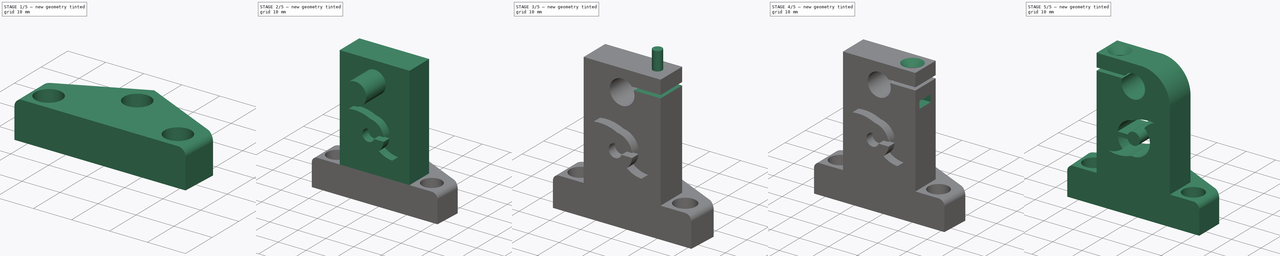
[diagram: build sequence overview — one tinted view per stage of 5, left to right]
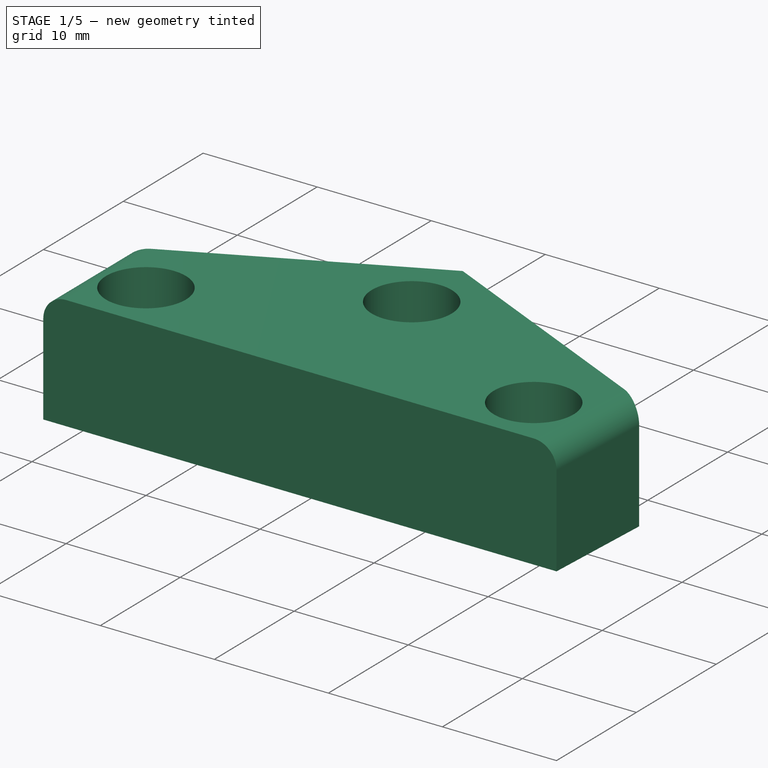
[diagram: stage 1 of 5 — iso view after this stage's code; geometry added in this stage tinted green]
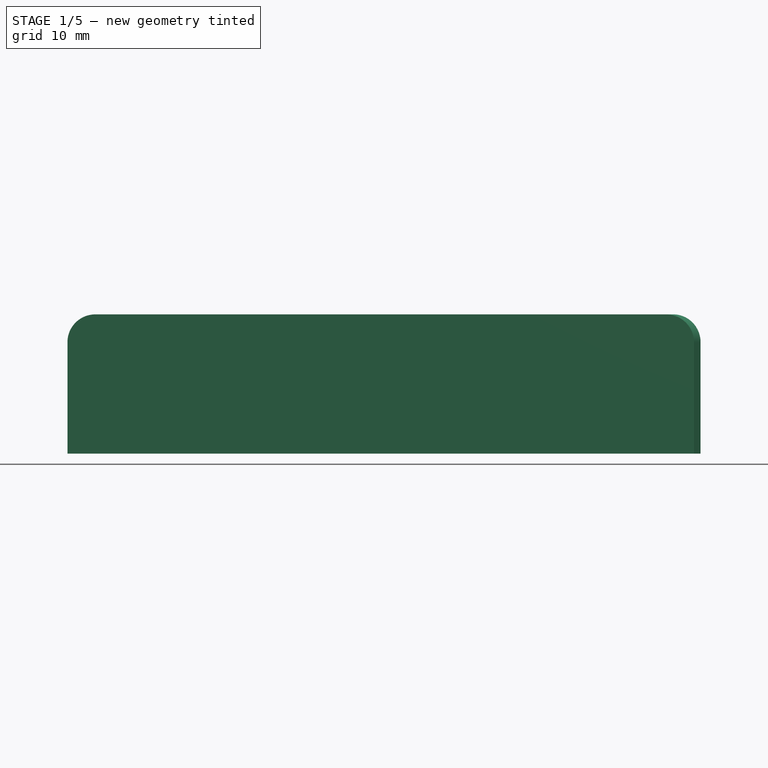
[diagram: stage 1 of 5 — front view after this stage's code; geometry added in this stage tinted green]
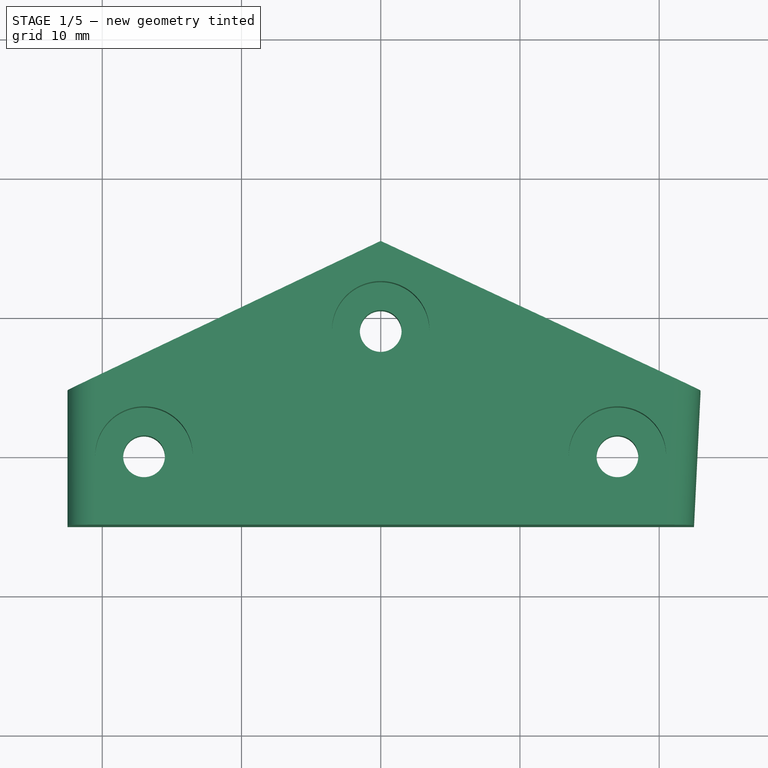
[diagram: stage 1 of 5 — top view after this stage's code; geometry added in this stage tinted green]
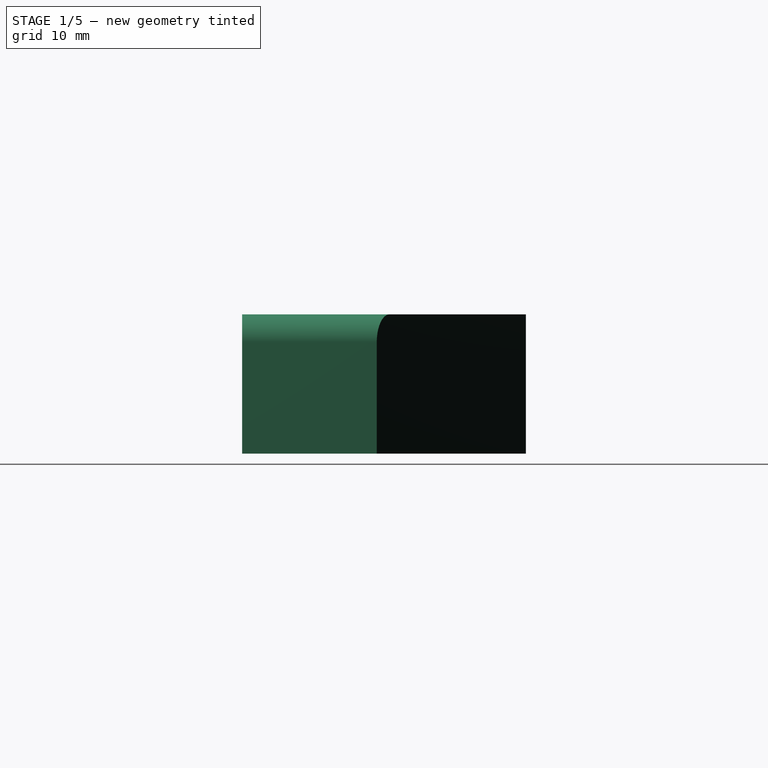
[diagram: stage 1 of 5 — right view after this stage's code; geometry added in this stage tinted green]
FCSTD DOCUMENT
Label: Y_idler
objects: Part::Cut×6, Sketcher::SketchObject×4, PartDesign::Pad×4, Drawing::FeatureViewPart×4, PartDesign::Fillet×3, Part::Cylinder×2, Part::Box×2, PartDesign::Chamfer×1, Part::MultiFuse×1, Part::Mirroring×1, Drawing::FeaturePage×1
note: 28 computed .brp shape members not serialized (recipe doc carries the construction recipe); baked Part::Feature solids carry a one-line shape summary decoded from their .brp

FEATURE [Sketcher::SketchObject] Sketch001  label="Base"
  sketch-geometry (17):
    g0: LineSegment StartX=22.9719 StartY=4.67181 StartZ=0 EndX=22.5 EndY=-5 EndZ=0
    g1: LineSegment StartX=22.5 StartY=-5 StartZ=0 EndX=-22.5 EndY=-5 EndZ=0
    g2: LineSegment StartX=-22.5 StartY=-5 StartZ=0 EndX=-22.5 EndY=4.68331 EndZ=0
    g3: LineSegment [constr] StartX=-17 StartY=0 StartZ=0 EndX=17 EndY=0 EndZ=0
    g4: LineSegment [constr] StartX=-17 StartY=0 StartZ=0 EndX=-17 EndY=9 EndZ=0
    g5: LineSegment [constr] StartX=17 StartY=0 StartZ=0 EndX=17 EndY=9 EndZ=0
    g6: LineSegment [constr] StartX=-17 StartY=9 StartZ=0 EndX=17 EndY=9 EndZ=0
    g7: GeomPoint [constr] X=0 Y=9 Z=0
    g8: GeomPoint [constr] X=-0.371652 Y=14 Z=0
    g9: Circle CenterX=-17 CenterY=0 CenterZ=0 NormalX=0 NormalY=0 NormalZ=1 Radius=1.5
    g10: Circle CenterX=0 CenterY=9 CenterZ=0 NormalX=0 NormalY=0 NormalZ=1 Radius=1.5
    g11: Circle CenterX=17 CenterY=0 CenterZ=0 NormalX=0 NormalY=0 NormalZ=1 Radius=1.5
    g12: LineSegment StartX=0 StartY=15.3838 StartZ=0 EndX=-22.5 EndY=4.68331 EndZ=0
    g13: LineSegment StartX=0 StartY=15.3838 StartZ=0 EndX=22.9719 EndY=4.67181 EndZ=0
    g14: Circle [constr] CenterX=-17 CenterY=0 CenterZ=0 NormalX=0 NormalY=0 NormalZ=1 Radius=3.5
    g15: Circle [constr] CenterX=0 CenterY=9 CenterZ=0 NormalX=0 NormalY=0 NormalZ=1 Radius=3.5
    g16: Circle [constr] CenterX=17 CenterY=0 CenterZ=0 NormalX=0 NormalY=0 NormalZ=1 Radius=3.5
  constraints (42):
    c: Coincident(g0,g1)
    c: Coincident(g1,g2)
    c: Horizontal(g1)
    c: Distance(g1) = 45
    c: Symmetric(g1,g0,g-2)
    c: Perpendicular(g1,g2)
    c: Equal(g2,g0)
    c: DistanceY(g-1,g1) = -5
    c: PointOnObject(g3,g-1)
    c: PointOnObject(g3,g-1)
    c: Coincident(g4,g3)
    c: Vertical(g4)
    c: Vertical(g5)
    c: Coincident(g6,g4)
    c: Coincident(g6,g5)
    c: Horizontal(g6)
    c: PointOnObject(g7,g6)
    c: Equal(g6,g3)
    c: Equal(g4,g5)
    c: Coincident(g9,g3)
    c: Radius(g9) = 1.5
    c: Coincident(g10,g7)
    c: Coincident(g11,g3)
    c: Equal(g9,g10)
    c: Equal(g10,g11)
    c: PointOnObject(g7,g-2)
    c: DistanceY(g7,g1) = -14
    c: Equal(g2,g0)
    c: Distance(g6) = 34
    c: Symmetric(g4,g5,g-2)
    c: Angle(g13) = -0.436332
    c: PointOnObject(g13,g0)
    c: Coincident(g2,g12)
    c: Coincident(g13,g0)
    c: PointOnObject(g13,g-2)
    c: Coincident(g12,g13)
    c: Coincident(g14,g3)
    c: Radius(g14) = 3.5
    c: Coincident(g15,g7)
    c: Coincident(g16,g3)
    c: Equal(g16,g15)
    c: Equal(g15,g14)
FEATURE [PartDesign::Pad] Pad006  label="BaseScrewHoles"
  Length = 10
  Length2 = 100
  Sketch = -> Sketch001
  Type = 0
FEATURE [Sketcher::SketchObject] Sketch001001  label="BaseholesOffset"
  Placement = pos=(0,0,5) rot=(0,0,1;0rad)
  sketch-geometry (17):
    g0: LineSegment [constr] StartX=22.9719 StartY=4.67181 StartZ=0 EndX=22.5 EndY=-5 EndZ=0
    g1: LineSegment [constr] StartX=22.5 StartY=-5 StartZ=0 EndX=-22.5 EndY=-5 EndZ=0
    g2: LineSegment [constr] StartX=-22.5 StartY=-5 StartZ=0 EndX=-22.5 EndY=4.68331 EndZ=0
    g3: LineSegment [constr] StartX=-17 StartY=0 StartZ=0 EndX=17 EndY=0 EndZ=0
    g4: LineSegment [constr] StartX=-17 StartY=0 StartZ=0 EndX=-17 EndY=9 EndZ=0
    g5: LineSegment [constr] StartX=17 StartY=0 StartZ=0 EndX=17 EndY=9 EndZ=0
    g6: LineSegment [constr] StartX=-17 StartY=9 StartZ=0 EndX=17 EndY=9 EndZ=0
    g7: GeomPoint [constr] X=0 Y=9 Z=0
    g8: GeomPoint [constr] X=-0.371652 Y=14 Z=0
    g9: Circle [constr] CenterX=-17 CenterY=0 CenterZ=0 NormalX=0 NormalY=0 NormalZ=1 Radius=1.5
    g10: Circle [constr] CenterX=0 CenterY=9 CenterZ=0 NormalX=0 NormalY=0 NormalZ=1 Radius=1.5
    g11: Circle [constr] CenterX=17 CenterY=0 CenterZ=0 NormalX=0 NormalY=0 NormalZ=1 Radius=1.5
    g12: LineSegment [constr] StartX=0 StartY=15.3838 StartZ=0 EndX=-22.5 EndY=4.68331 EndZ=0
    g13: LineSegment [constr] StartX=0 StartY=15.3838 StartZ=0 EndX=22.9719 EndY=4.67181 EndZ=0
    g14: Circle CenterX=-17 CenterY=0 CenterZ=0 NormalX=0 NormalY=0 NormalZ=1 Radius=3.5
    g15: Circle CenterX=0 CenterY=9 CenterZ=0 NormalX=0 NormalY=0 NormalZ=1 Radius=3.5
    g16: Circle CenterX=17 CenterY=0 CenterZ=0 NormalX=0 NormalY=0 NormalZ=1 Radius=3.5
  constraints (42):
    c: Coincident(g0,g1)
    c: Coincident(g1,g2)
    c: Horizontal(g1)
    c: Distance(g1) = 45
    c: Symmetric(g1,g0,g-2)
    c: Perpendicular(g1,g2)
    c: Equal(g2,g0)
    c: DistanceY(g-1,g1) = -5
    c: PointOnObject(g3,g-1)
    c: PointOnObject(g3,g-1)
    c: Coincident(g4,g3)
    c: Vertical(g4)
    c: Vertical(g5)
    c: Coincident(g6,g4)
    c: Coincident(g6,g5)
    c: Horizontal(g6)
    c: PointOnObject(g7,g6)
    c: Equal(g6,g3)
    c: Equal(g4,g5)
    c: Coincident(g9,g3)
    c: Radius(g9) = 1.5
    c: Coincident(g10,g7)
    c: Coincident(g11,g3)
    c: Equal(g9,g10)
    c: Equal(g10,g11)
    c: PointOnObject(g7,g-2)
    c: DistanceY(g7,g1) = -14
    c: Equal(g2,g0)
    c: Distance(g6) = 34
    c: Symmetric(g4,g5,g-2)
    c: Angle(g13) = -0.436332
    c: PointOnObject(g13,g0)
    c: Coincident(g2,g12)
    c: Coincident(g13,g0)
    c: PointOnObject(g13,g-2)
    c: Coincident(g12,g13)
    c: Coincident(g14,g3)
    c: Radius(g14) = 3.5
    c: Coincident(g15,g7)
    c: Coincident(g16,g3)
    c: Equal(g16,g15)
    c: Equal(g15,g14)
FEATURE [PartDesign::Pad] Pad  label="BaseOffsetHoles"
  Length = 5
  Length2 = 100
  Placement = pos=(0,0,5) rot=(0,0,1;0rad)
  Sketch = -> Sketch001001
  Type = 0
FEATURE [Part::Cut] Cut  label="BaseOffsetHoles001--"
  Base = -> Pad006
  Tool = -> Pad
FEATURE [PartDesign::Fillet] Fillet003  label="BaseFillet01"
  Base = -> Cut [Edge20,Edge4]
  Radius = 2
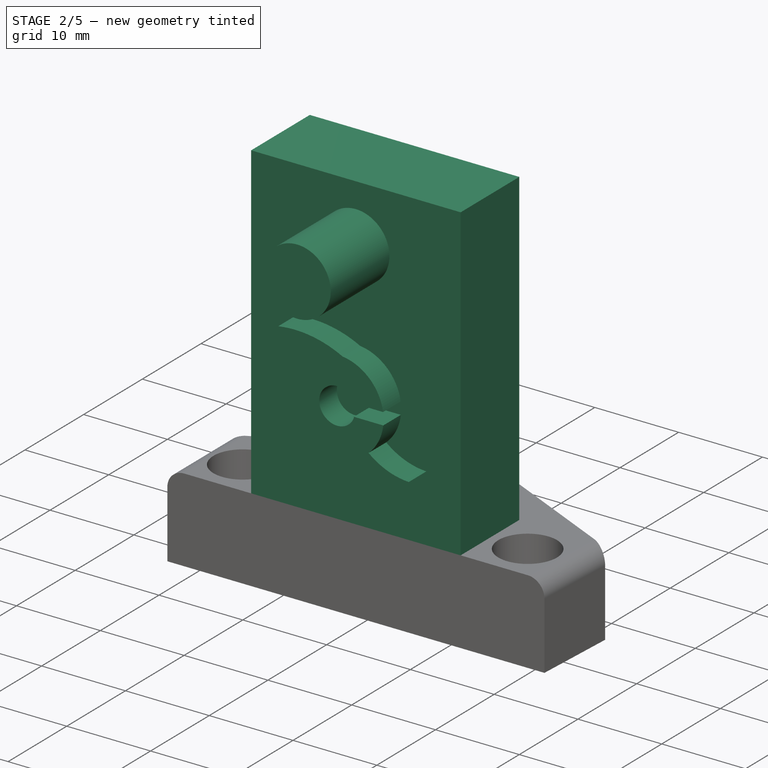
[diagram: stage 2 of 5 — iso view after this stage's code; geometry added in this stage tinted green]
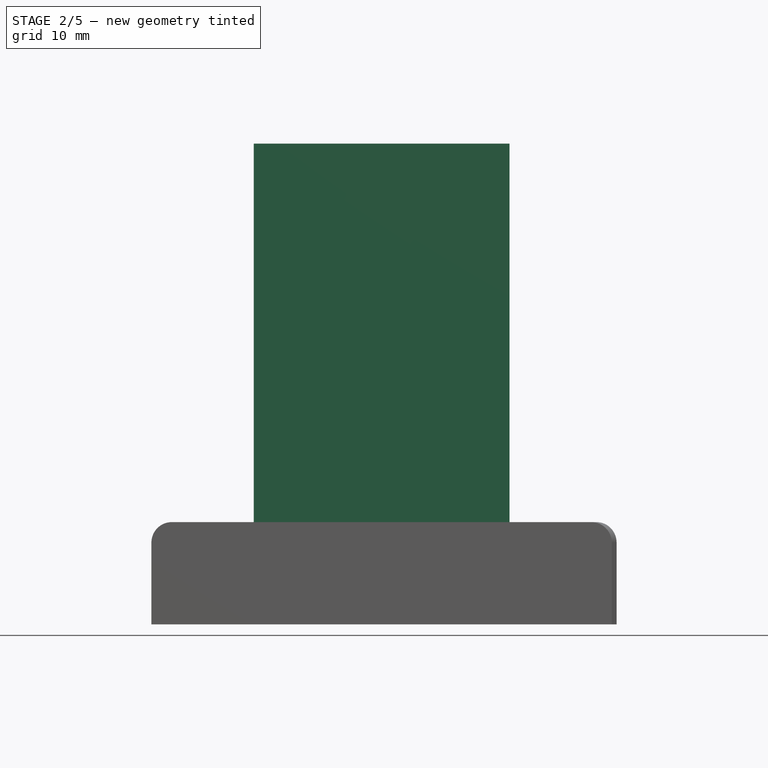
[diagram: stage 2 of 5 — front view after this stage's code; geometry added in this stage tinted green]
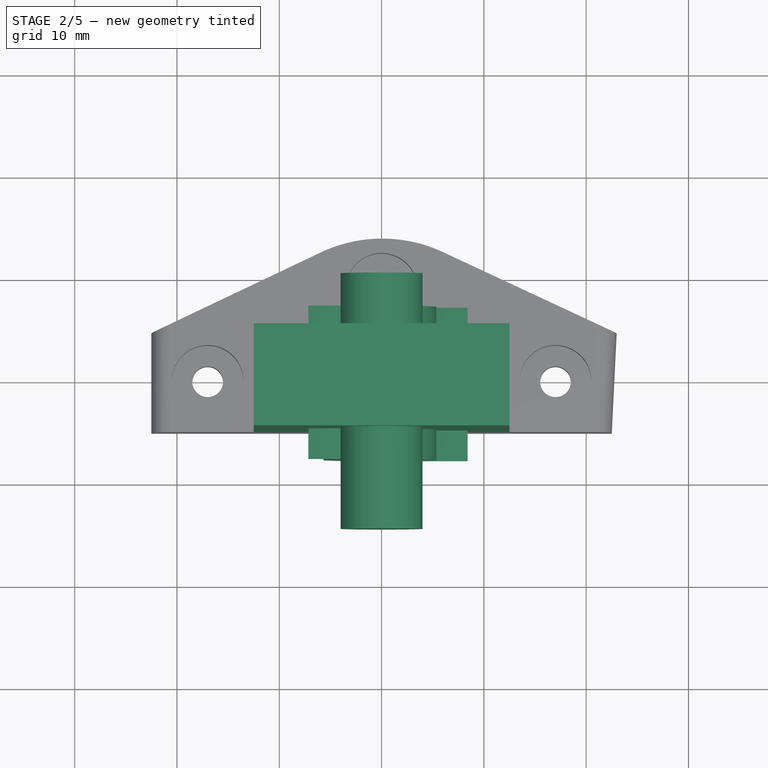
[diagram: stage 2 of 5 — top view after this stage's code; geometry added in this stage tinted green]
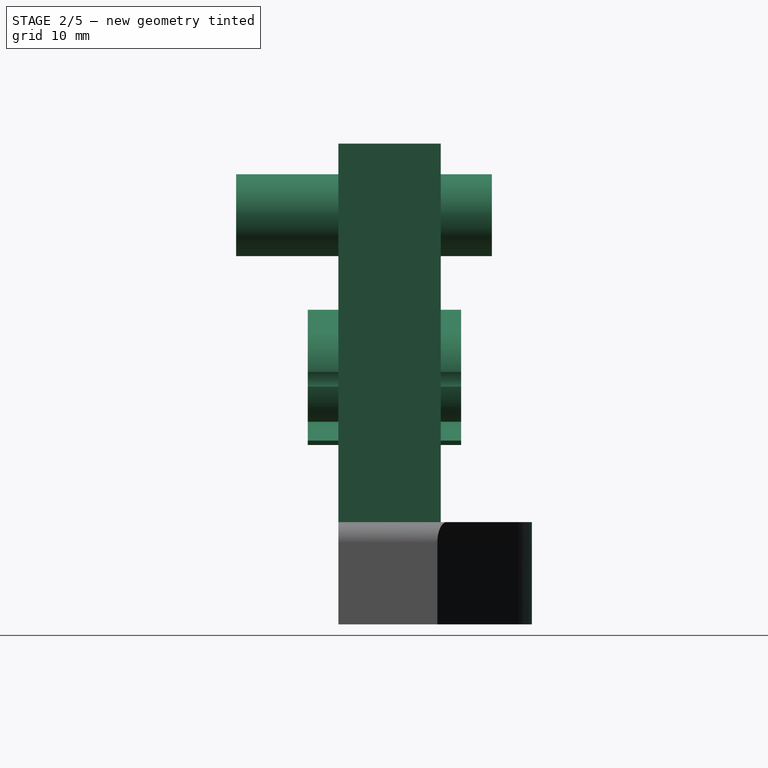
[diagram: stage 2 of 5 — right view after this stage's code; geometry added in this stage tinted green]
FEATURE [Sketcher::SketchObject] Sketch
  Placement = pos=(0,0,10) rot=(0,0,1;0rad)
  sketch-geometry (4):
    g0: LineSegment StartX=-12.5 StartY=5 StartZ=0 EndX=12.5 EndY=5 EndZ=0
    g1: LineSegment StartX=12.5 StartY=5 StartZ=0 EndX=12.5 EndY=-5 EndZ=0
    g2: LineSegment StartX=12.5 StartY=-5 StartZ=0 EndX=-12.5 EndY=-5 EndZ=0
    g3: LineSegment StartX=-12.5 StartY=-5 StartZ=0 EndX=-12.5 EndY=5 EndZ=0
  constraints (12):
    c: Coincident(g0,g1)
    c: Coincident(g1,g2)
    c: Coincident(g2,g3)
    c: Coincident(g3,g0)
    c: Horizontal(g0)
    c: Horizontal(g2)
    c: Vertical(g1)
    c: Vertical(g3)
    c: Symmetric(g0,g1,g-1)
    c: Symmetric(g2,g1,g-2)
    c: Distance(g1) = 10
    c: Distance(g2) = 25
FEATURE [Part::Cylinder] Cylinder  label="VarillaLisa8mm"
  Angle = 360
  Height = 25
  Placement = pos=(0,9.99999,40) rot=(1,0,0;1.5708rad)
  Radius = 4
FEATURE [PartDesign::Pad] Pad003  label="BodyMain"
  Length = 37
  Length2 = 100
  Placement = pos=(0,0,10) rot=(0,0,1;0rad)
  Sketch = -> Sketch
  Type = 0
FEATURE [Sketcher::SketchObject] Sketch002001
  Placement = pos=(6,7,1) rot=(1,0,0;1.5708rad)
  sketch-geometry (13):
    g0: ArcOfCircle CenterX=-6.13831 CenterY=22.8862 CenterZ=0 NormalX=0 NormalY=0 NormalZ=1 Radius=5.54033 StartAngle=0.145591 EndAngle=1.45322
    g1: ArcOfCircle CenterX=-6.13831 CenterY=22.8862 CenterZ=0 NormalX=0 NormalY=0 NormalZ=1 Radius=2.13852 StartAngle=0.38532 EndAngle=5.92565
    g2: LineSegment StartX=-4.15659 StartY=23.69 StartZ=0 EndX=-0.65659 EndY=23.69 EndZ=0
    g3: LineSegment StartX=-0.635028 StartY=22.2465 StartZ=0 EndX=-4.13503 EndY=22.2465 EndZ=0
    g4: LineSegment StartX=-4.13503 StartY=22.2465 StartZ=0 EndX=-4.13503 EndY=22.1378 EndZ=0
    g5: GeomPoint [constr] X=-0.209946 Y=23.69 Z=0
    g6: GeomPoint [constr] X=-0.64162 Y=22.1921 Z=0
    g7: ArcOfCircle CenterX=-11.1988 CenterY=17.1528 CenterZ=0 NormalX=0 NormalY=0 NormalZ=1 Radius=12.6033 StartAngle=1.10058 EndAngle=1.7272
    g8: ArcOfCircle CenterX=-15.5105 CenterY=22.7921 CenterZ=0 NormalX=0 NormalY=0 NormalZ=1 Radius=7.20379 StartAngle=0.640895 EndAngle=1.23871
    g9: ArcOfCircle CenterX=-6.13831 CenterY=22.8862 CenterZ=0 NormalX=0 NormalY=0 NormalZ=1 Radius=5.54033 StartAngle=2.27759 EndAngle=4.86072
    g10: ArcOfCircle CenterX=-0.794043 CenterY=28.67 CenterZ=0 NormalX=0 NormalY=0 NormalZ=1 Radius=12.1384 StartAngle=4.33034 EndAngle=4.97972
    g11: ArcOfCircle CenterX=2.73964 CenterY=24.94 CenterZ=0 NormalX=0 NormalY=0 NormalZ=1 Radius=7.98397 StartAngle=4.01609 EndAngle=4.6714
    g12: ArcOfCircle CenterX=-6.13831 CenterY=22.8862 CenterZ=0 NormalX=0 NormalY=0 NormalZ=1 Radius=5.54033 StartAngle=5.45764 EndAngle=6.16747
  constraints (23):
    c: Coincident(g1,g0)
    c: Coincident(g3,g4)
    c: Horizontal(g2)
    c: Horizontal(g3)
    c: Vertical(g4)
    c: PointOnObject(g5,g2)
    c: PointOnObject(g6,g0)
    c: Coincident(g0,g2)
    c: Coincident(g12,g3)
    c: Coincident(g1,g2)
    c: Coincident(g4,g1)
    c: Equal(g2,g3)
    c: Distance(g2) = 3.5
    c: Coincident(g8,g7)
    c: Equal(g0,g9)
    c: Coincident(g0,g7)
    c: Coincident(g9,g8)
    c: Coincident(g0,g9)
    c: Coincident(g11,g10)
    c: Equal(g9,g12)
    c: Coincident(g9,g10)
    c: Coincident(g12,g11)
    c: Coincident(g9,g12)
FEATURE [PartDesign::Pad] Pad009  label="Logo"
  Length = 15
  Length2 = 100
  Placement = pos=(6,7,1) rot=(1,0,0;1.5708rad)
  Sketch = -> Sketch002001
  Type = 0
FEATURE [PartDesign::Fillet] Fillet004  label="BaseFillet02"
  Base = -> Fillet003 [Edge8]
  Radius = 14
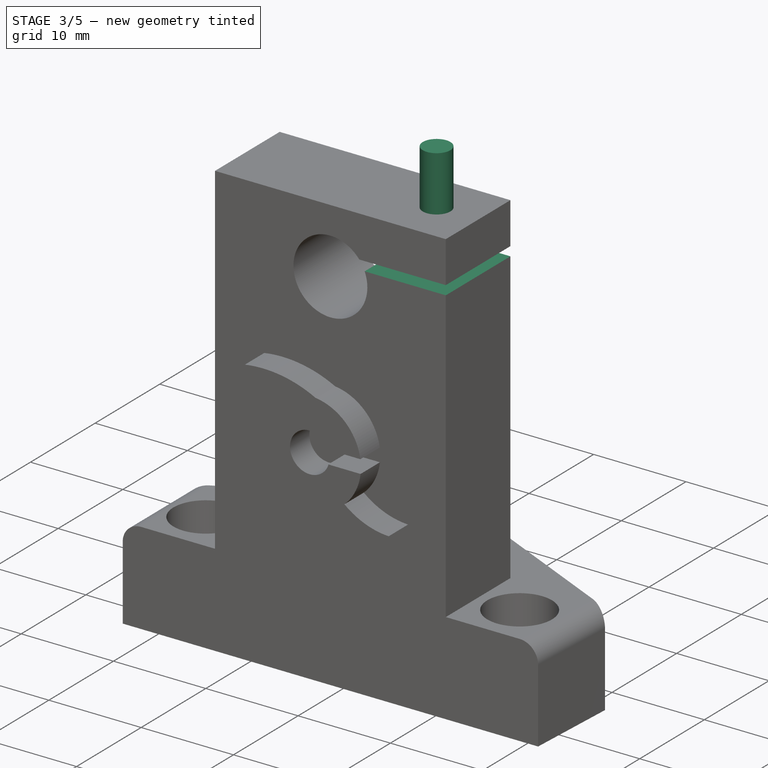
[diagram: stage 3 of 5 — iso view after this stage's code; geometry added in this stage tinted green]
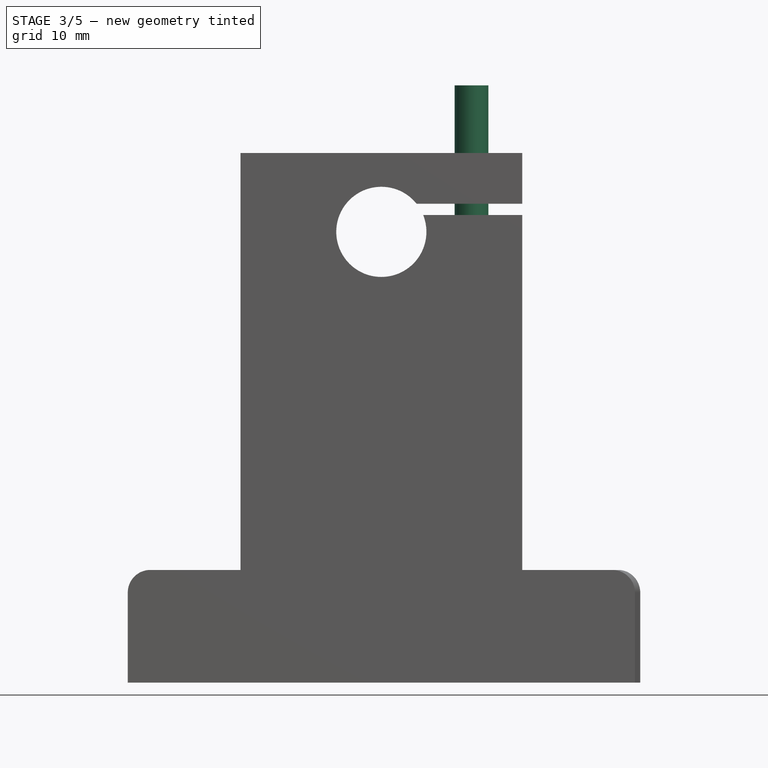
[diagram: stage 3 of 5 — front view after this stage's code; geometry added in this stage tinted green]
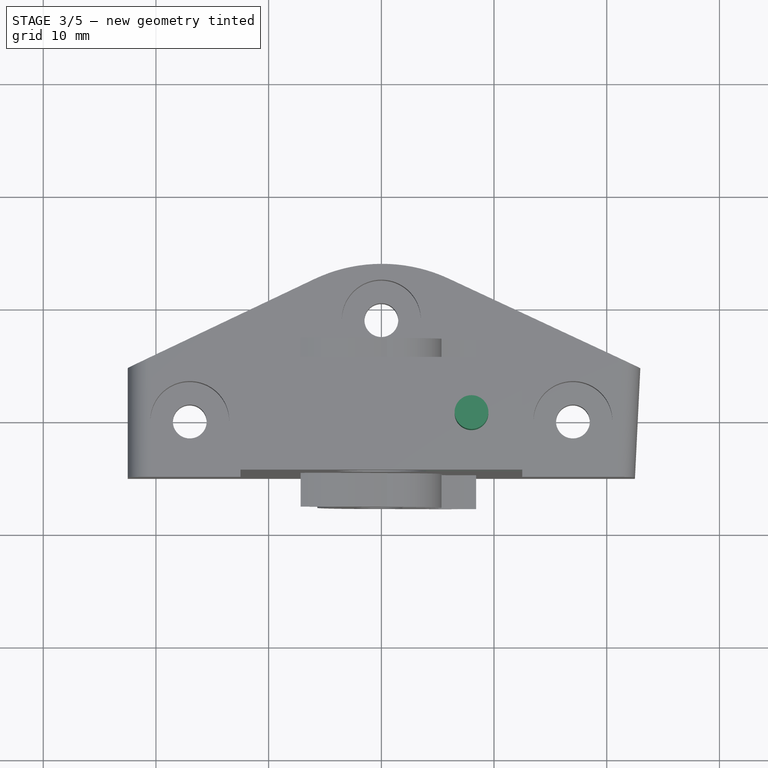
[diagram: stage 3 of 5 — top view after this stage's code; geometry added in this stage tinted green]
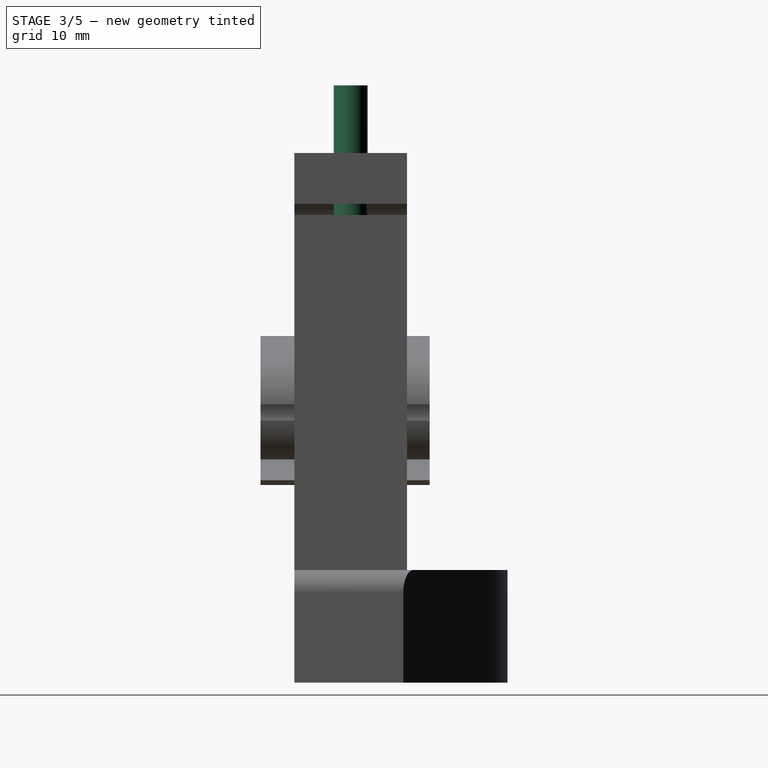
[diagram: stage 3 of 5 — right view after this stage's code; geometry added in this stage tinted green]
FEATURE [Part::Cylinder] Cylinder001  label="BoltHole3mm"
  Angle = 360
  Height = 33
  Placement = pos=(8,0,20) rot=(0,0,1;0rad)
  Radius = 1.5
FEATURE [Part::Box] Box001  label="Corte SeguroVArilla"
  Height = 1
  Length = 40
  Placement = pos=(0,-13,41.5) rot=(0,0,1;0rad)
  Width = 25
FEATURE [Part::Cut] Cut002  label="BodyholeVarilla"
  Base = -> Pad003
  Tool = -> Cylinder
FEATURE [Part::Cut] Cut003  label="BodyholeSeguro"
  Base = -> Cut002
  Tool = -> Box001
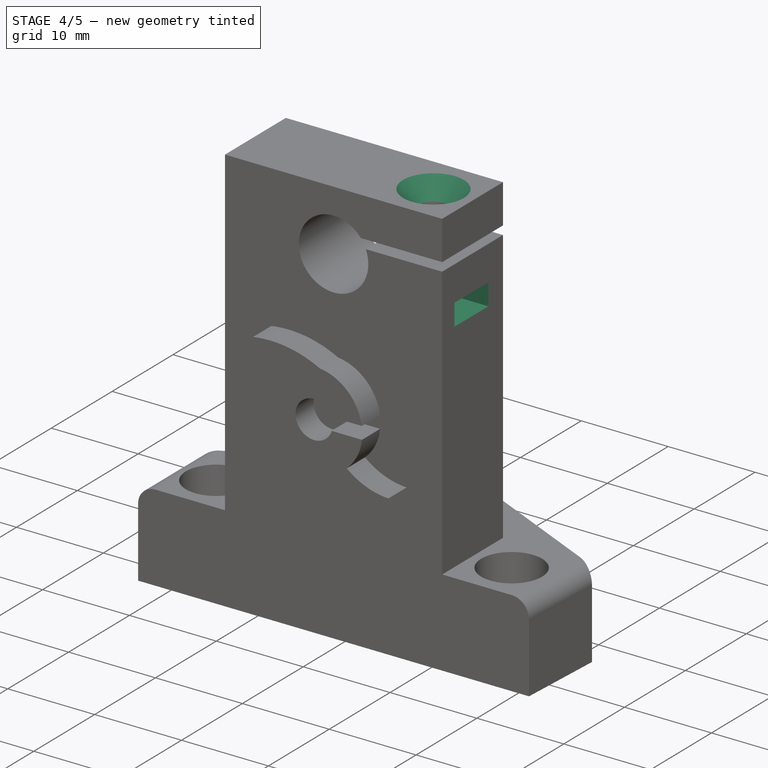
[diagram: stage 4 of 5 — iso view after this stage's code; geometry added in this stage tinted green]
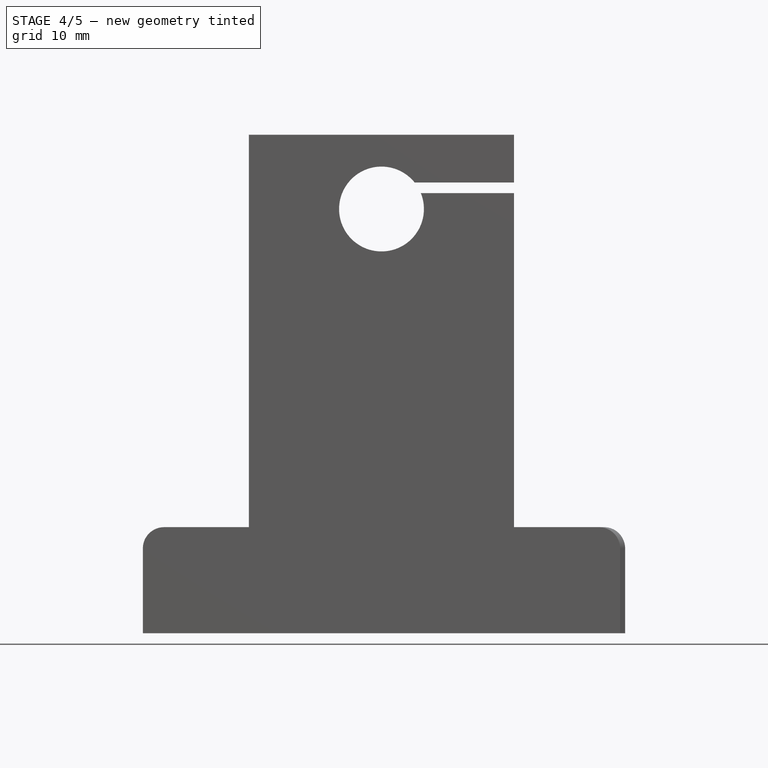
[diagram: stage 4 of 5 — front view after this stage's code; geometry added in this stage tinted green]
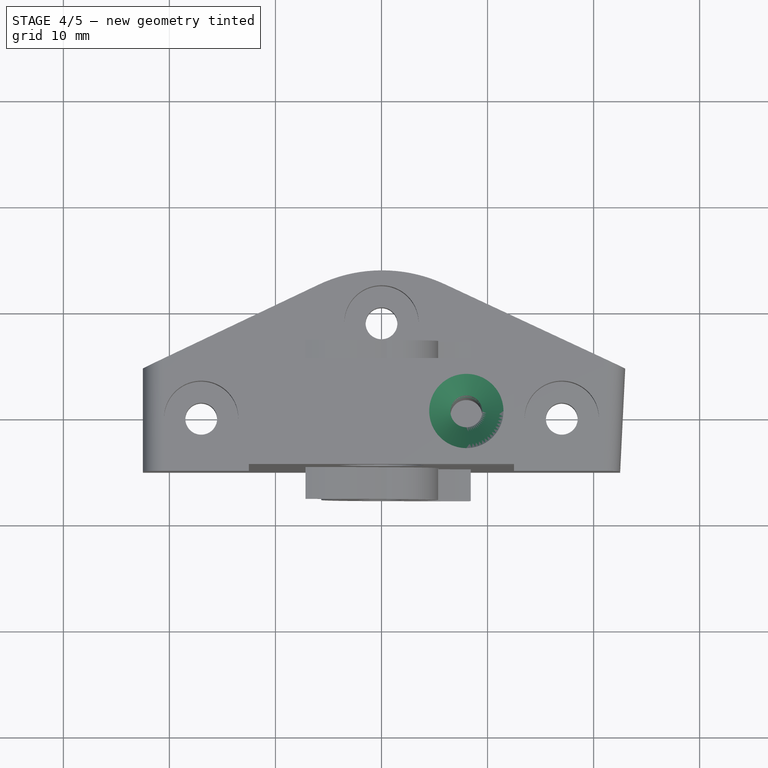
[diagram: stage 4 of 5 — top view after this stage's code; geometry added in this stage tinted green]
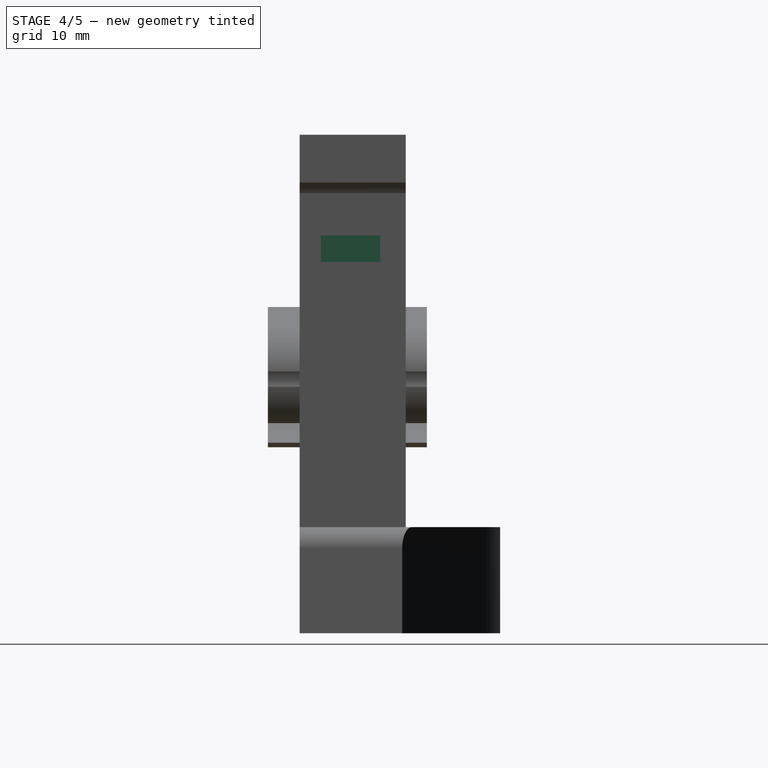
[diagram: stage 4 of 5 — right view after this stage's code; geometry added in this stage tinted green]
FEATURE [Part::Box] Box  label="NutHole3mm"
  Height = 2.5
  Length = 12
  Placement = pos=(4,-3,35) rot=(0,0,1;0rad)
  Width = 5.6
FEATURE [Part::Cut] Cut004  label="BodyBoltSafety"
  Base = -> Cut003
  Tool = -> Cylinder001
FEATURE [Part::Cut] Cut005  label="BodyNutHolder"
  Base = -> Cut004
  Tool = -> Box
FEATURE [PartDesign::Chamfer] Chamfer  label="BodyChamferTopScrew"
  Base = -> Cut005 [Edge37]
  Size = 2
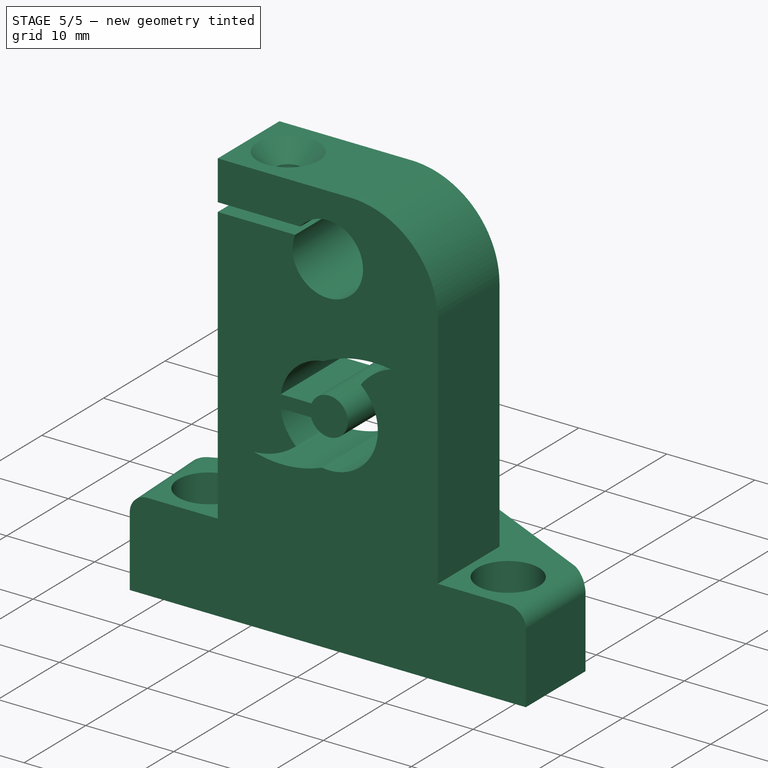
[diagram: stage 5 of 5 — iso view after this stage's code; geometry added in this stage tinted green]
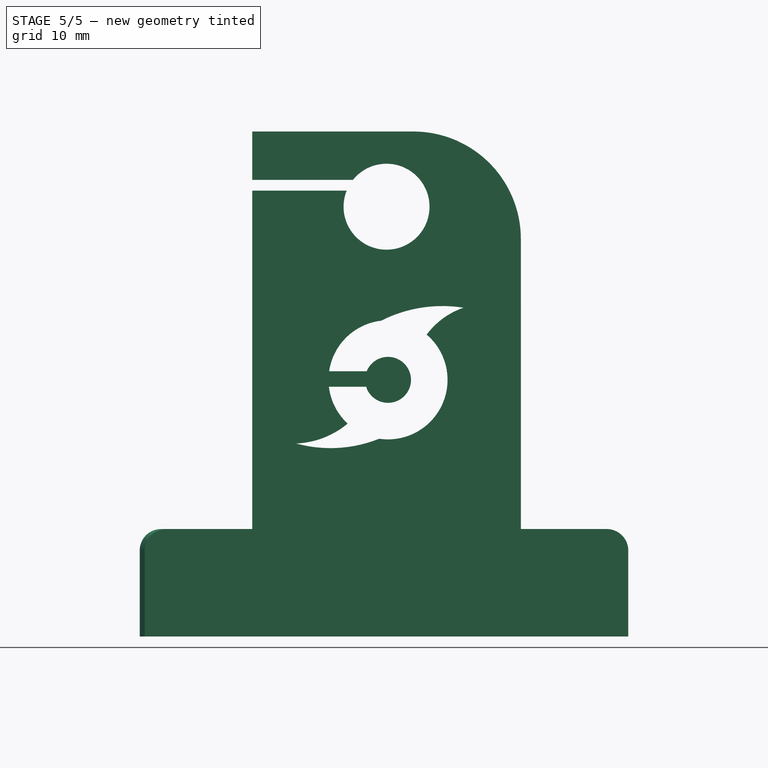
[diagram: stage 5 of 5 — front view after this stage's code; geometry added in this stage tinted green]
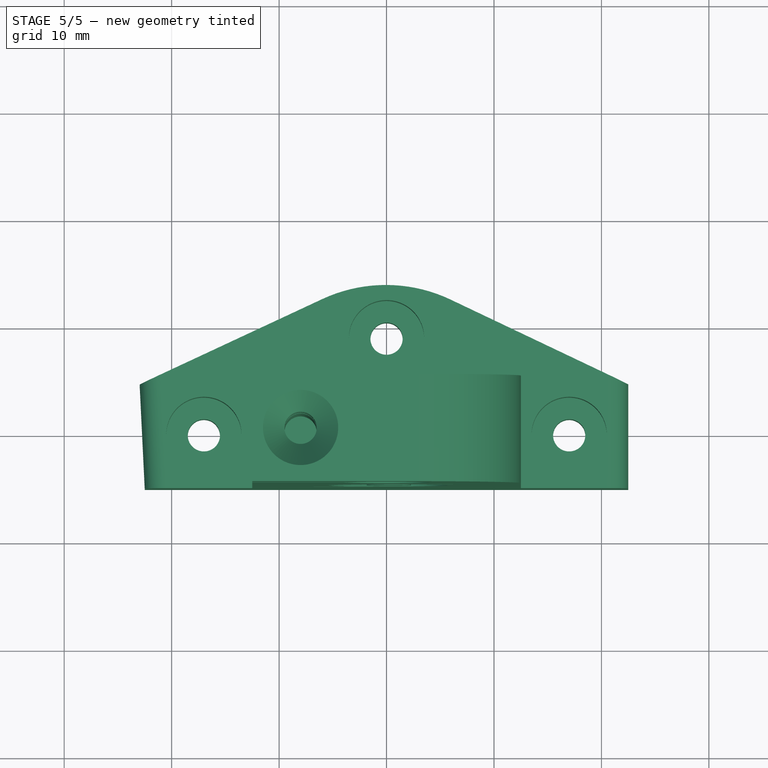
[diagram: stage 5 of 5 — top view after this stage's code; geometry added in this stage tinted green]
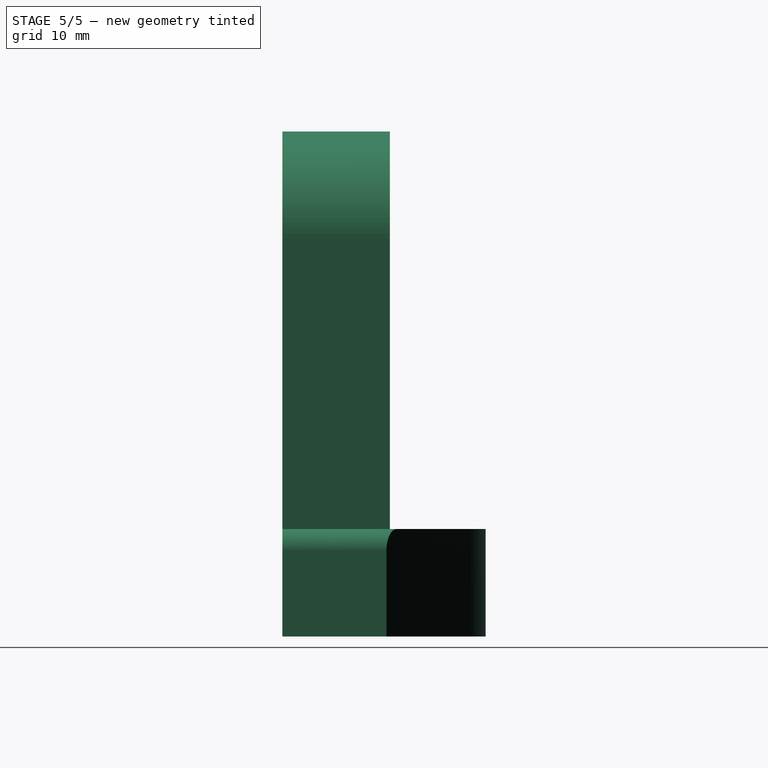
[diagram: stage 5 of 5 — right view after this stage's code; geometry added in this stage tinted green]
FEATURE [PartDesign::Fillet] Fillet001  label="BodyFilletTopRightCorner"
  Base = -> Chamfer [Edge4]
  Radius = 10
FEATURE [Part::Cut] Cut006  label="BodyLogo--"
  Base = -> Fillet001
  Tool = -> Pad009
FEATURE [Part::MultiFuse] Fusion  label="YIdlerLeft"
  Shapes = -> [Fillet004,Cut006]
FEATURE [Part::Mirroring] Part__Mirroring  label="YIdlerRight (Mirror #1)"
  Base = (0,0,0)
  Normal = (0,0,1)
  Placement = pos=(60,0,0) rot=(0,1,0;3.14159rad)
  Source = -> Fusion
FEATURE [Drawing::FeatureViewPart] Ortho  label="Front001"
  Direction = (0,1,0)
  LineWidth = 0.35
  Rotation = -90
  Scale = 2
  ShowHiddenLines = false
  ShowSmoothLines = false
  Source = -> Fusion
  Tolerance = 0.05
  ViewResult = <blob: 2049 chars omitted>
  X = 127.53
  Y = 220
FEATURE [Drawing::FeatureViewPart] Ortho001  label="Top"
  Direction = (0,0,1)
  LineWidth = 0.35
  Rotation = 0
  Scale = 2
  ShowHiddenLines = false
  ShowSmoothLines = false
  Source = -> Fusion
  Tolerance = 0.05
  ViewResult = <blob: 2528 chars omitted>
  X = 124.53
  Y = 53
FEATURE [Drawing::FeatureViewPart] Ortho002  label="Right"
  Direction = (1,0,0)
  LineWidth = 0.35
  Rotation = -90
  Scale = 2
  ShowHiddenLines = false
  ShowSmoothLines = false
  Source = -> Fusion
  Tolerance = 0.05
  ViewResult = <blob: 3071 chars omitted>
  X = 283.766
  Y = 220
FEATURE [Drawing::FeatureViewPart] View
  Direction = (1,-2,3)
  LineWidth = 0.35
  Rotation = -90
  Scale = 2
  ShowHiddenLines = false
  ShowSmoothLines = false
  Source = -> Fusion
  Tolerance = 0.05
  ViewResult = <blob: 7331 chars omitted>
  X = 280
  Y = 110
FEATURE [Drawing::FeaturePage] Page
  EditableTexts = yOPERO | 21/04/2014 | SUPERVISOR yOPERO | 21/04/2014 | 2.0 | 0.007  ABS 0.3 Infill | 1 | 1 | Cyclone PCB | Y Idler
  Group = -> [Ortho,Ortho001,Ortho002,View]
  Template = C:/Program Files/FreeCAD0.13/data/Mod/Drawing/Templates/A3_Landscape.svg
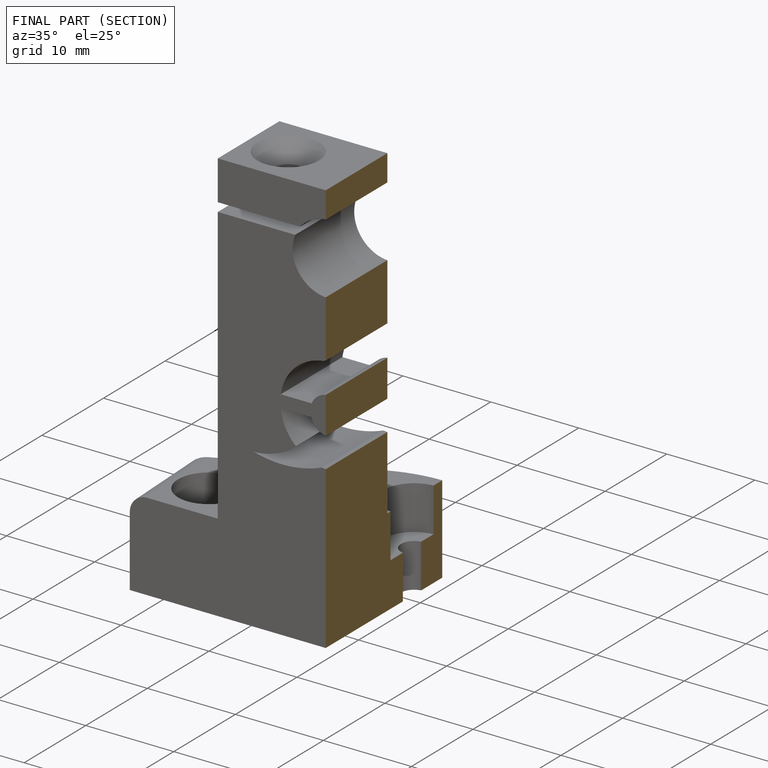
[diagram: finished part — half-section view (interior)]
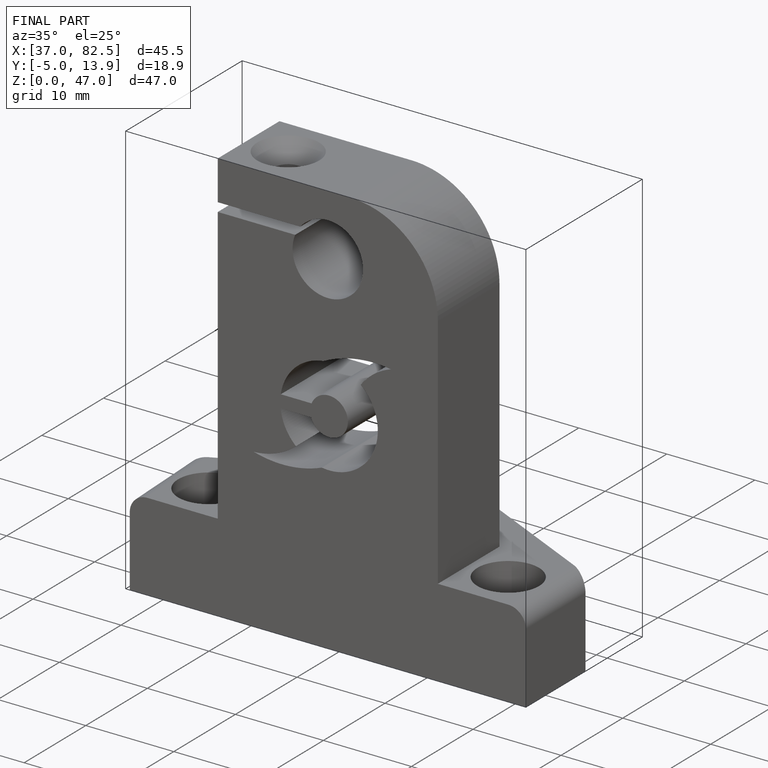
[diagram: finished part — iso view with bounding-box wireframe]
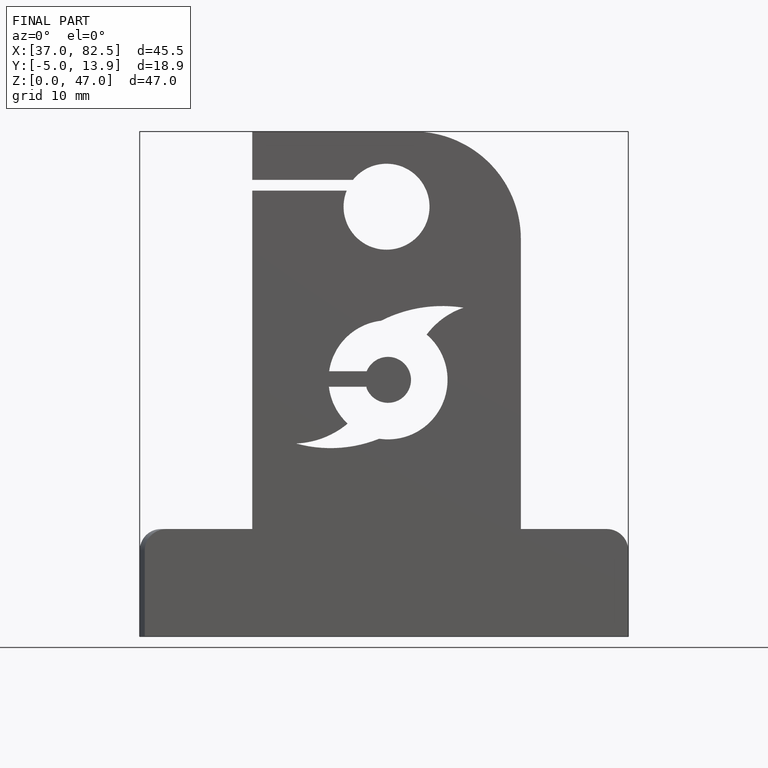
[diagram: finished part — front view with bounding-box wireframe]
